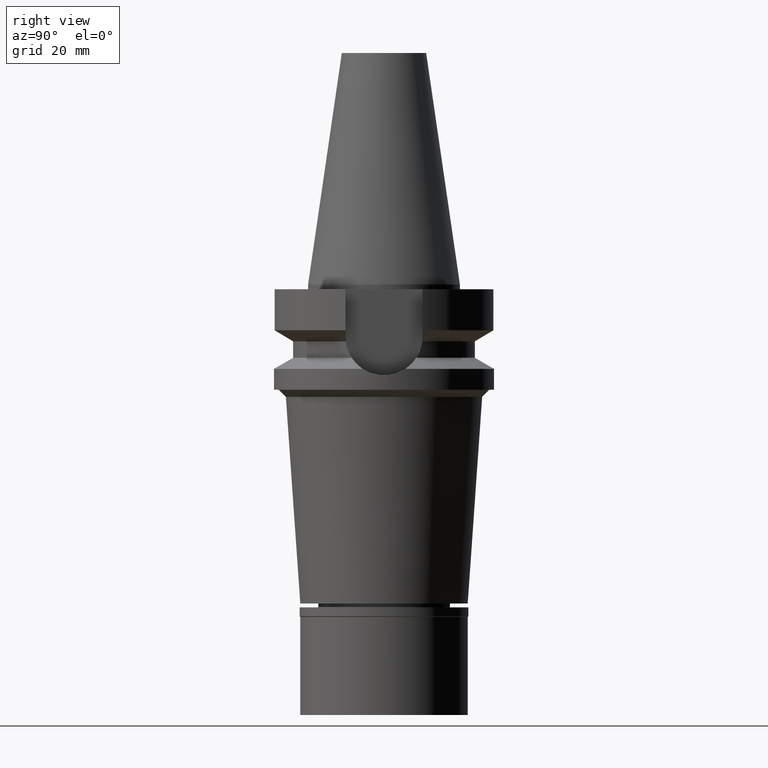
[diagram: clean part render]
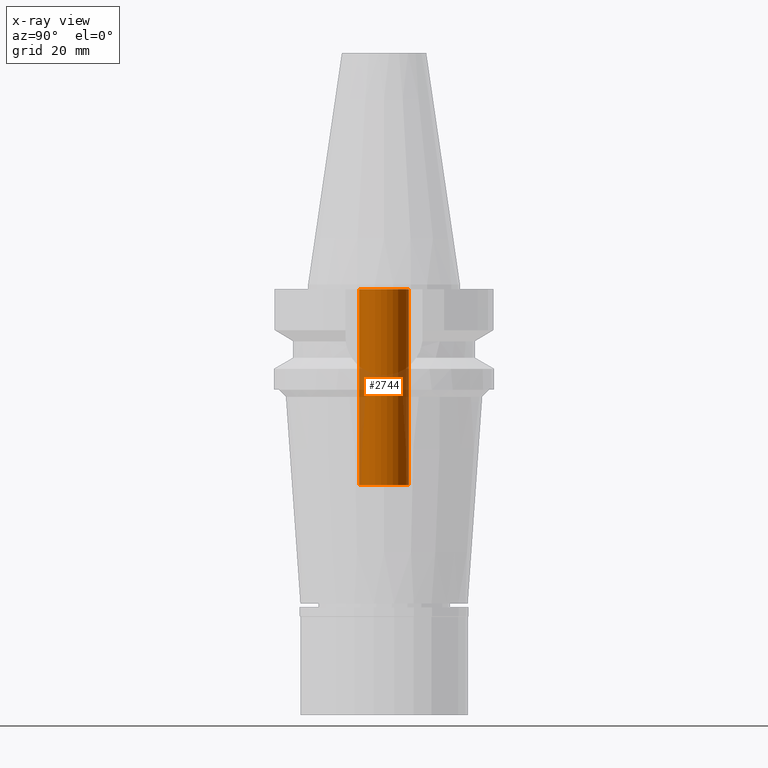
[diagram: x-ray — body ghosted, one internal face saturated and labeled with its STEP entity id]
A machine part, right view, then the same camera in x-ray: the body is ghosted and one INTERNAL B-rep face — a face not visible from any outside direction — is saturated and labeled: STEP entity #2744.
In plain terms, the highlighted cylindrical surface (edge-blend (fillet) strip) has radius 5.2 mm, axis along (0, 0, -1).
Its self-contained STEP definition (entity closure, byte-faithful):
#214 = DIRECTION ( 'NONE',  ( 0.0000000000000000000, -1.000000000000000000, 0.0000000000000000000 ) ) ;
#220 = CIRCLE ( 'NONE', #915, 5.200000000000000178 ) ;
#269 = CIRCLE ( 'NONE', #2033, 5.200000000000000178 ) ;
#312 = DIRECTION ( 'NONE',  ( 0.0000000000000000000, 0.0000000000000000000, -1.000000000000000000 ) ) ;
#336 = DIRECTION ( 'NONE',  ( 0.0000000000000000000, 0.0000000000000000000, 1.000000000000000000 ) ) ;
#355 = DIRECTION ( 'NONE',  ( 0.0000000000000000000, -1.000000000000000000, 0.0000000000000000000 ) ) ;
#393 = CARTESIAN_POINT ( 'NONE',  ( 0.0000000000000000000, 0.0000000000000000000, 0.0000000000000000000 ) ) ;
#518 = EDGE_LOOP ( 'NONE', ( #1716, #1694, #2003, #897 ) ) ;
#586 = CARTESIAN_POINT ( 'NONE',  ( 0.0000000000000000000, 5.200000000000000178, -1.000000000000000000 ) ) ;
#820 = VERTEX_POINT ( 'NONE', #2825 ) ;
#897 = ORIENTED_EDGE ( 'NONE', *, *, #2578, .F. ) ;
#915 = AXIS2_PLACEMENT_3D ( 'NONE', #3025, #2327, #214 ) ;
#950 = VERTEX_POINT ( 'NONE', #586 ) ;
#1072 = CARTESIAN_POINT ( 'NONE',  ( 0.0000000000000000000, -5.200000000000000178, -42.00000000000000000 ) ) ;
#1074 = CARTESIAN_POINT ( 'NONE',  ( 0.0000000000000000000, -5.200000000000000178, -42.00000000000000000 ) ) ;
#1101 = DIRECTION ( 'NONE',  ( 0.0000000000000000000, 0.0000000000000000000, -1.000000000000000000 ) ) ;
#1198 = AXIS2_PLACEMENT_3D ( 'NONE', #393, #1101, #355 ) ;
#1221 = CARTESIAN_POINT ( 'NONE',  ( 0.0000000000000000000, 5.200000000000000178, -42.00000000000000000 ) ) ;
#1280 = VERTEX_POINT ( 'NONE', #1072 ) ;
#1289 = CARTESIAN_POINT ( 'NONE',  ( 0.0000000000000000000, 5.200000000000000178, -42.00000000000000000 ) ) ;
#1520 = LINE ( 'NONE', #1074, #1596 ) ;
#1569 = EDGE_CURVE ( 'NONE', #2722, #1280, #269, .T. ) ;
#1596 = VECTOR ( 'NONE', #336, 1000.000000000000000 ) ;
#1694 = ORIENTED_EDGE ( 'NONE', *, *, #2274, .T. ) ;
#1701 = EDGE_CURVE ( 'NONE', #820, #950, #220, .T. ) ;
#1716 = ORIENTED_EDGE ( 'NONE', *, *, #1569, .T. ) ;
#1723 = DIRECTION ( 'NONE',  ( 0.0000000000000000000, 1.000000000000000000, 0.0000000000000000000 ) ) ;
#1740 = VECTOR ( 'NONE', #2179, 1000.000000000000000 ) ;
#1743 = FACE_OUTER_BOUND ( 'NONE', #518, .T. ) ;
#2003 = ORIENTED_EDGE ( 'NONE', *, *, #1701, .T. ) ;
#2030 = CARTESIAN_POINT ( 'NONE',  ( 0.0000000000000000000, 0.0000000000000000000, -42.00000000000000000 ) ) ;
#2033 = AXIS2_PLACEMENT_3D ( 'NONE', #2030, #312, #1723 ) ;
#2179 = DIRECTION ( 'NONE',  ( 0.0000000000000000000, 0.0000000000000000000, 1.000000000000000000 ) ) ;
#2274 = EDGE_CURVE ( 'NONE', #1280, #820, #1520, .T. ) ;
#2327 = DIRECTION ( 'NONE',  ( 0.0000000000000000000, 0.0000000000000000000, 1.000000000000000000 ) ) ;
#2492 = CYLINDRICAL_SURFACE ( 'NONE', #1198, 5.200000000000000178 ) ;
#2578 = EDGE_CURVE ( 'NONE', #2722, #950, #2899, .T. ) ;
#2722 = VERTEX_POINT ( 'NONE', #1289 ) ;
#2744 = ADVANCED_FACE ( 'NONE', ( #1743 ), #2492, .F. ) ;
#2825 = CARTESIAN_POINT ( 'NONE',  ( 0.0000000000000000000, -5.200000000000000178, -1.000000000000000000 ) ) ;
#2899 = LINE ( 'NONE', #1221, #1740 ) ;
#3025 = CARTESIAN_POINT ( 'NONE',  ( 0.0000000000000000000, 0.0000000000000000000, -1.000000000000000000 ) ) ;